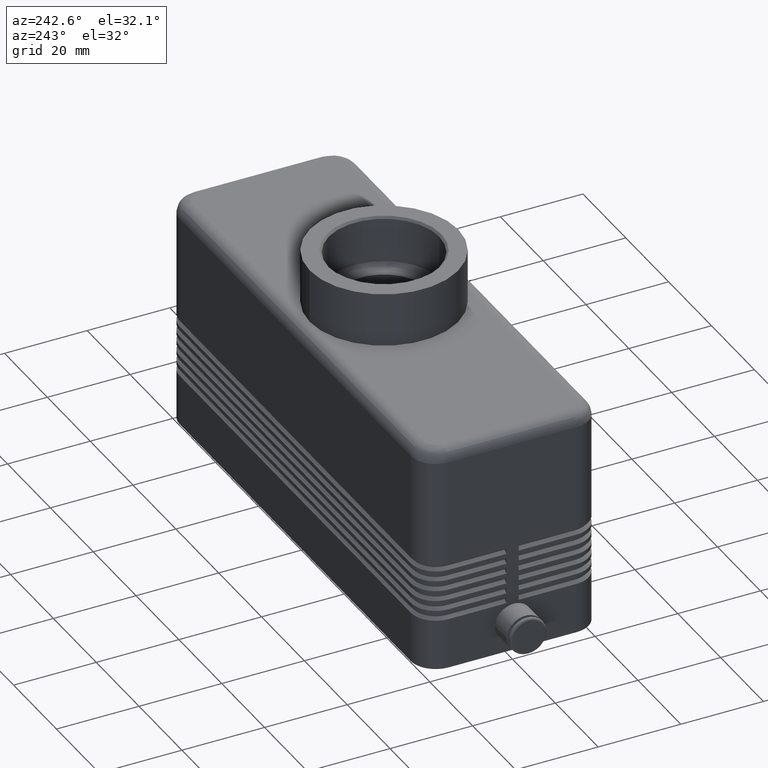
[diagram: clean part render]
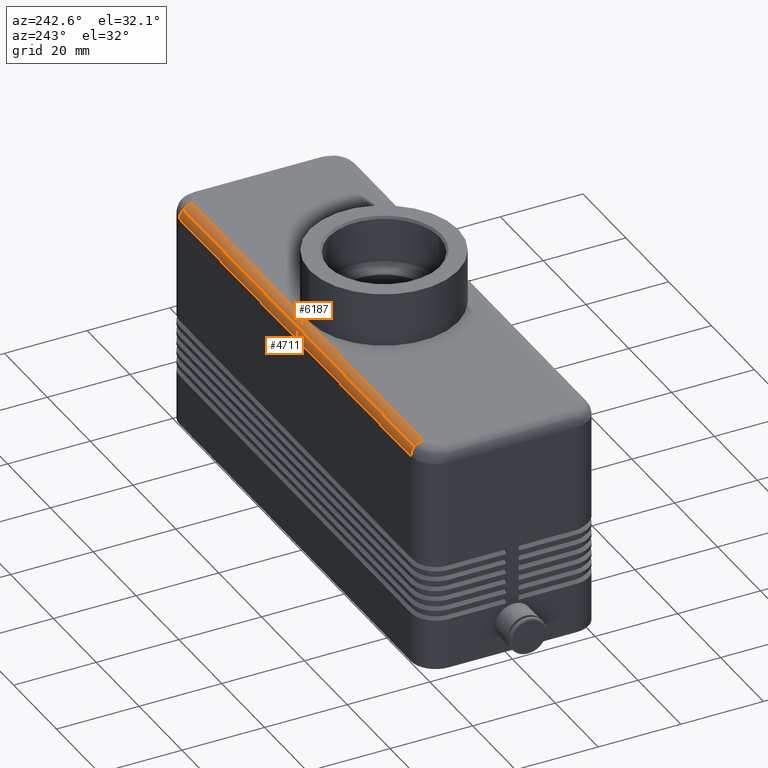
[diagram: same view with one multi-face feature highlighted, each face labeled with its STEP entity id]
A machine part, auxiliary view. The highlighted faces form ONE feature: a constant-radius fillet chain: 2 tangent blend faces with common blend radius 3 mm. The faces share edges in the B-rep.
Their STEP definitions:
[1] entity #6187 (Cylinder):
#4679=CARTESIAN_POINT('',(53.999999999999993,20.621320343559642,54.121320343559638));
#4680=VERTEX_POINT('',#4679);
#4681=CARTESIAN_POINT('',(-53.999999999999986,20.621320343559638,54.121320343559631));
#4682=VERTEX_POINT('',#4681);
#4683=CARTESIAN_POINT('',(53.999999999999993,20.621320343559642,54.121320343559638));
#4684=DIRECTION('',(-1.0,0.0,0.0));
#4685=VECTOR('',#4684,107.999999999999970);
#4686=LINE('',#4683,#4685);
#4687=EDGE_CURVE('',#4680,#4682,#4686,.T.);
#5441=CARTESIAN_POINT('',(53.999999999999993,18.500000000000000,54.999999999999993));
#5442=VERTEX_POINT('',#5441);
#5450=CARTESIAN_POINT('',(-53.999999999999986,18.499999999999996,54.999999999999993));
#5451=VERTEX_POINT('',#5450);
#5452=CARTESIAN_POINT('',(-53.999999999999986,18.499999999999996,54.999999999999993));
#5453=DIRECTION('',(1.0,0.0,0.0));
#5454=VECTOR('',#5453,107.999999999999970);
#5455=LINE('',#5452,#5454);
#5456=EDGE_CURVE('',#5451,#5442,#5455,.T.);
#6079=CARTESIAN_POINT('',(-53.999999999999986,18.499999999999996,52.000000000000014));
#6080=DIRECTION('',(-1.0,0.0,0.0));
#6081=DIRECTION('',(0.0,0.0,1.0));
#6082=AXIS2_PLACEMENT_3D('',#6079,#6080,#6081);
#6083=CIRCLE('',#6082,2.999999999999981);
#6084=EDGE_CURVE('',#5451,#4682,#6083,.T.);
#6155=CARTESIAN_POINT('',(53.999999999999993,18.500000000000000,51.999999999999993));
#6156=DIRECTION('',(1.0,0.0,0.0));
#6157=DIRECTION('',(0.0,1.0,0.0));
#6158=AXIS2_PLACEMENT_3D('',#6155,#6156,#6157);
#6159=CIRCLE('',#6158,3.000000000000000);
#6160=EDGE_CURVE('',#4680,#5442,#6159,.T.);
#6176=CARTESIAN_POINT('',(29.999999999999996,18.500000000000000,51.999999999999993));
#6177=DIRECTION('',(-1.0,0.0,0.0));
#6178=DIRECTION('',(0.0,0.707106781186547,0.707106781186548));
#6179=AXIS2_PLACEMENT_3D('',#6176,#6177,#6178);
#6180=CYLINDRICAL_SURFACE('',#6179,3.000000000000000);
#6181=ORIENTED_EDGE('',*,*,#4687,.T.);
#6182=ORIENTED_EDGE('',*,*,#6084,.F.);
#6183=ORIENTED_EDGE('',*,*,#5456,.T.);
#6184=ORIENTED_EDGE('',*,*,#6160,.F.);
#6185=EDGE_LOOP('',(#6181,#6182,#6183,#6184));
#6186=FACE_OUTER_BOUND('',#6185,.T.);
#6187=ADVANCED_FACE('',(#6186),#6180,.T.);
[2] entity #4711 (Cylinder):
#2358=CARTESIAN_POINT('',(-53.999999999999986,21.500000000000000,52.000000000000014));
#2359=VERTEX_POINT('',#2358);
#4656=CARTESIAN_POINT('',(53.999999999999993,21.500000000000000,51.999999999999993));
#4657=VERTEX_POINT('',#4656);
#4674=CARTESIAN_POINT('',(29.999999999999996,18.500000000000000,51.999999999999993));
#4675=DIRECTION('',(-1.0,0.0,0.0));
#4676=DIRECTION('',(0.0,0.707106781186547,0.707106781186548));
#4677=AXIS2_PLACEMENT_3D('',#4674,#4675,#4676);
#4678=CYLINDRICAL_SURFACE('',#4677,3.000000000000000);
#4679=CARTESIAN_POINT('',(53.999999999999993,20.621320343559642,54.121320343559638));
#4680=VERTEX_POINT('',#4679);
#4681=CARTESIAN_POINT('',(-53.999999999999986,20.621320343559638,54.121320343559631));
#4682=VERTEX_POINT('',#4681);
#4683=CARTESIAN_POINT('',(53.999999999999993,20.621320343559642,54.121320343559638));
#4684=DIRECTION('',(-1.0,0.0,0.0));
#4685=VECTOR('',#4684,107.999999999999970);
#4686=LINE('',#4683,#4685);
#4687=EDGE_CURVE('',#4680,#4682,#4686,.T.);
#4688=ORIENTED_EDGE('',*,*,#4687,.F.);
#4689=CARTESIAN_POINT('',(53.999999999999993,18.500000000000000,51.999999999999993));
#4690=DIRECTION('',(1.0,0.0,0.0));
#4691=DIRECTION('',(0.0,1.0,0.0));
#4692=AXIS2_PLACEMENT_3D('',#4689,#4690,#4691);
#4693=CIRCLE('',#4692,3.000000000000000);
#4694=EDGE_CURVE('',#4657,#4680,#4693,.T.);
#4695=ORIENTED_EDGE('',*,*,#4694,.F.);
#4696=CARTESIAN_POINT('',(53.999999999999993,21.500000000000000,51.999999999999993));
#4697=DIRECTION('',(-1.0,0.0,0.0));
#4698=VECTOR('',#4697,107.999999999999970);
#4699=LINE('',#4696,#4698);
#4700=EDGE_CURVE('',#4657,#2359,#4699,.T.);
#4701=ORIENTED_EDGE('',*,*,#4700,.T.);
#4702=CARTESIAN_POINT('',(-53.999999999999986,18.499999999999996,52.000000000000014));
#4703=DIRECTION('',(-1.0,0.0,0.0));
#4704=DIRECTION('',(0.0,0.0,1.0));
#4705=AXIS2_PLACEMENT_3D('',#4702,#4703,#4704);
#4706=CIRCLE('',#4705,2.999999999999981);
#4707=EDGE_CURVE('',#4682,#2359,#4706,.T.);
#4708=ORIENTED_EDGE('',*,*,#4707,.F.);
#4709=EDGE_LOOP('',(#4688,#4695,#4701,#4708));
#4710=FACE_OUTER_BOUND('',#4709,.T.);
#4711=ADVANCED_FACE('',(#4710),#4678,.T.);